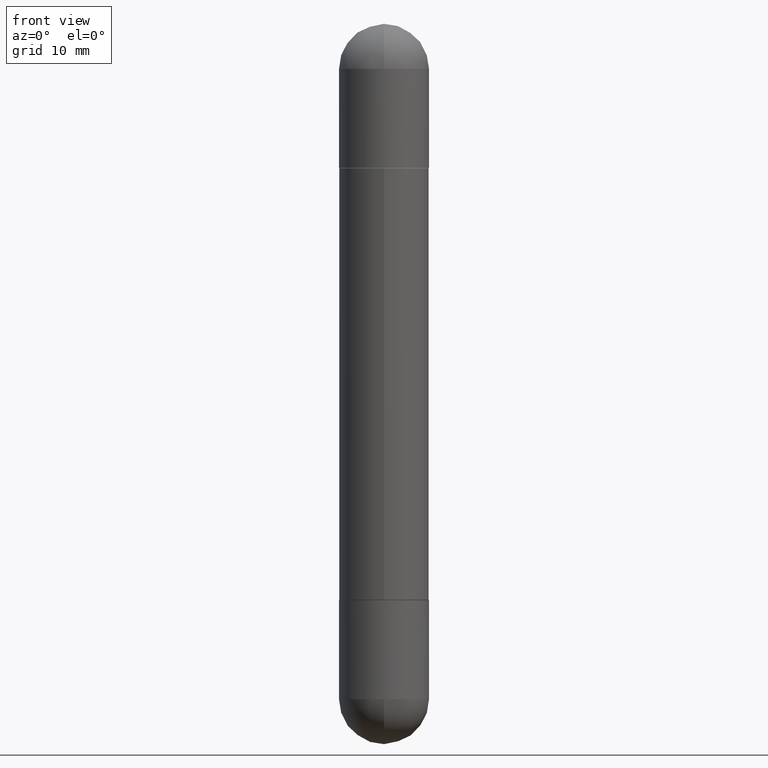
[diagram: clean part render]
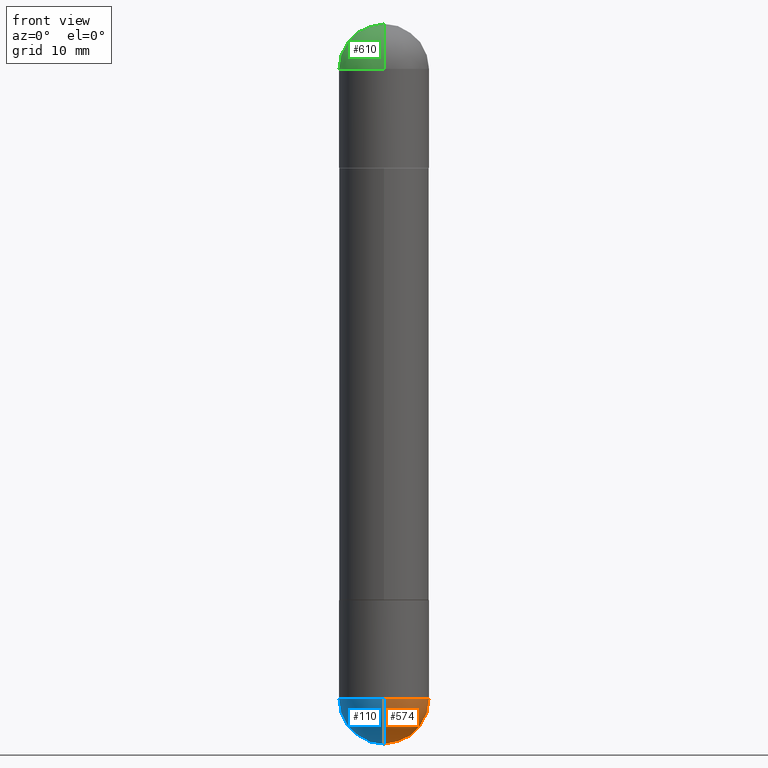
[diagram: same view with three faces highlighted in distinct colors, each labeled with its STEP entity id]
A machine part, front view with three faces highlighted in distinct colors.
Their STEP definitions:

[orange] entity #574 — the highlighted spherical surface has radius 3.9688 mm.
#8 = CIRCLE ( 'NONE', #326, 0.1562500000000000000 ) ;
#57 = ORIENTED_EDGE ( 'NONE', *, *, #159, .F. ) ;
#82 = DIRECTION ( 'NONE',  ( 1.000000000000000000, -6.982962677686265922E-15, 4.883557194083112340E-29 ) ) ;
#108 = DIRECTION ( 'NONE',  ( -1.000000000000000000, 6.982962677686265922E-15, -4.883557194083112340E-29 ) ) ;
#113 = AXIS2_PLACEMENT_3D ( 'NONE', #125, #459, #770 ) ;
#125 = CARTESIAN_POINT ( 'NONE',  ( 5.400447736582527652E-29, -8.657341756053672891E-15, -2.343750000000000000 ) ) ;
#148 = DIRECTION ( 'NONE',  ( 1.000000000000000000, -6.982962677686262766E-15, 0.000000000000000000 ) ) ;
#159 = EDGE_CURVE ( 'NONE', #549, #381, #8, .T. ) ;
#236 = AXIS2_PLACEMENT_3D ( 'NONE', #304, #108, #795 ) ;
#242 = FACE_OUTER_BOUND ( 'NONE', #442, .T. ) ;
#289 = VERTEX_POINT ( 'NONE', #362 ) ;
#304 = CARTESIAN_POINT ( 'NONE',  ( 5.400447736582527652E-29, -8.657341756053672891E-15, -2.343750000000000000 ) ) ;
#326 = AXIS2_PLACEMENT_3D ( 'NONE', #335, #720, #148 ) ;
#335 = CARTESIAN_POINT ( 'NONE',  ( 5.731567514496413899E-29, -8.183159387913622595E-15, -2.343750000000000000 ) ) ;
#336 = CARTESIAN_POINT ( 'NONE',  ( 1.091087918388535577E-15, 0.1562499999999916733, -2.343750000000000444 ) ) ;
#362 = CARTESIAN_POINT ( 'NONE',  ( -1.110223024625101517E-15, -0.1562500000000085487, -2.343749999999999556 ) ) ;
#376 = EDGE_CURVE ( 'NONE', #682, #381, #800, .T. ) ;
#381 = VERTEX_POINT ( 'NONE', #336 ) ;
#440 = CIRCLE ( 'NONE', #505, 0.1562500000000000000 ) ;
#442 = EDGE_LOOP ( 'NONE', ( #735, #761, #57, #808 ) ) ;
#459 = DIRECTION ( 'NONE',  ( -1.000000000000000000, 7.105427357601001070E-15, -4.926315508542082329E-29 ) ) ;
#495 = DIRECTION ( 'NONE',  ( 1.000000000000000000, -6.982962677686262766E-15, 0.000000000000000000 ) ) ;
#499 = SPHERICAL_SURFACE ( 'NONE', #236, 0.1562500000000002498 ) ;
#505 = AXIS2_PLACEMENT_3D ( 'NONE', #802, #677, #495 ) ;
#513 = CARTESIAN_POINT ( 'NONE',  ( 5.789233224183170584E-29, -9.193318162129576161E-15, -2.500000000000000000 ) ) ;
#549 = VERTEX_POINT ( 'NONE', #551 ) ;
#551 = CARTESIAN_POINT ( 'NONE',  ( 0.1562500000000000000, -8.674148951188436448E-15, -2.343750000000000000 ) ) ;
#564 = EDGE_CURVE ( 'NONE', #289, #549, #440, .T. ) ;
#574 = ADVANCED_FACE ( 'NONE', ( #242 ), #499, .T. ) ;
#639 = CIRCLE ( 'NONE', #113, 0.1562500000000002498 ) ;
#661 = AXIS2_PLACEMENT_3D ( 'NONE', #665, #82, #789 ) ;
#665 = CARTESIAN_POINT ( 'NONE',  ( 5.400447736582527652E-29, -8.657341756053672891E-15, -2.343750000000000000 ) ) ;
#677 = DIRECTION ( 'NONE',  ( -2.445468806185136597E-29, 3.491481338843145583E-15, 1.000000000000000000 ) ) ;
#682 = VERTEX_POINT ( 'NONE', #513 ) ;
#720 = DIRECTION ( 'NONE',  ( -2.445468806185136597E-29, 3.491481338843145583E-15, 1.000000000000000000 ) ) ;
#735 = ORIENTED_EDGE ( 'NONE', *, *, #763, .F. ) ;
#761 = ORIENTED_EDGE ( 'NONE', *, *, #376, .T. ) ;
#763 = EDGE_CURVE ( 'NONE', #682, #289, #639, .T. ) ;
#770 = DIRECTION ( 'NONE',  ( -7.105427357601000281E-15, -1.000000000000000000, 0.000000000000000000 ) ) ;
#789 = DIRECTION ( 'NONE',  ( 6.982962677686265922E-15, 1.000000000000000000, 0.000000000000000000 ) ) ;
#795 = DIRECTION ( 'NONE',  ( 6.982962677686265922E-15, 1.000000000000000000, -3.496765431890251398E-15 ) ) ;
#800 = CIRCLE ( 'NONE', #661, 0.1562500000000002498 ) ;
#802 = CARTESIAN_POINT ( 'NONE',  ( 5.731567514496413899E-29, -8.183159387913622595E-15, -2.343750000000000000 ) ) ;
#808 = ORIENTED_EDGE ( 'NONE', *, *, #564, .F. ) ;

[blue] entity #110 — the highlighted spherical surface has radius 3.9688 mm.
#81 = DIRECTION ( 'NONE',  ( 1.000000000000000000, -6.982962677686262766E-15, 0.000000000000000000 ) ) ;
#82 = DIRECTION ( 'NONE',  ( 1.000000000000000000, -6.982962677686265922E-15, 4.883557194083112340E-29 ) ) ;
#110 = ADVANCED_FACE ( 'NONE', ( #461 ), #523, .T. ) ;
#113 = AXIS2_PLACEMENT_3D ( 'NONE', #125, #459, #770 ) ;
#125 = CARTESIAN_POINT ( 'NONE',  ( 5.400447736582527652E-29, -8.657341756053672891E-15, -2.343750000000000000 ) ) ;
#158 = DIRECTION ( 'NONE',  ( 6.982962677686265922E-15, 1.000000000000000000, -3.496765431890251398E-15 ) ) ;
#171 = ORIENTED_EDGE ( 'NONE', *, *, #376, .F. ) ;
#187 = EDGE_CURVE ( 'NONE', #453, #289, #314, .T. ) ;
#218 = CARTESIAN_POINT ( 'NONE',  ( 5.731567514496413899E-29, -8.183159387913622595E-15, -2.343750000000000000 ) ) ;
#239 = EDGE_CURVE ( 'NONE', #381, #453, #724, .T. ) ;
#257 = AXIS2_PLACEMENT_3D ( 'NONE', #664, #352, #81 ) ;
#262 = EDGE_LOOP ( 'NONE', ( #171, #316, #566, #490 ) ) ;
#289 = VERTEX_POINT ( 'NONE', #362 ) ;
#314 = CIRCLE ( 'NONE', #257, 0.1562500000000000000 ) ;
#316 = ORIENTED_EDGE ( 'NONE', *, *, #763, .T. ) ;
#336 = CARTESIAN_POINT ( 'NONE',  ( 1.091087918388535577E-15, 0.1562499999999916733, -2.343750000000000444 ) ) ;
#352 = DIRECTION ( 'NONE',  ( -2.445468806185136597E-29, 3.491481338843145583E-15, 1.000000000000000000 ) ) ;
#356 = DIRECTION ( 'NONE',  ( 1.000000000000000000, -6.982962677686262766E-15, 0.000000000000000000 ) ) ;
#362 = CARTESIAN_POINT ( 'NONE',  ( -1.110223024625101517E-15, -0.1562500000000085487, -2.343749999999999556 ) ) ;
#376 = EDGE_CURVE ( 'NONE', #682, #381, #800, .T. ) ;
#381 = VERTEX_POINT ( 'NONE', #336 ) ;
#400 = CARTESIAN_POINT ( 'NONE',  ( 5.400447736582527652E-29, -8.657341756053672891E-15, -2.343750000000000000 ) ) ;
#453 = VERTEX_POINT ( 'NONE', #728 ) ;
#459 = DIRECTION ( 'NONE',  ( -1.000000000000000000, 7.105427357601001070E-15, -4.926315508542082329E-29 ) ) ;
#461 = FACE_OUTER_BOUND ( 'NONE', #262, .T. ) ;
#481 = DIRECTION ( 'NONE',  ( -1.000000000000000000, 6.982962677686265922E-15, -4.883557194083112340E-29 ) ) ;
#490 = ORIENTED_EDGE ( 'NONE', *, *, #239, .F. ) ;
#513 = CARTESIAN_POINT ( 'NONE',  ( 5.789233224183170584E-29, -9.193318162129576161E-15, -2.500000000000000000 ) ) ;
#523 = SPHERICAL_SURFACE ( 'NONE', #637, 0.1562500000000002498 ) ;
#566 = ORIENTED_EDGE ( 'NONE', *, *, #187, .F. ) ;
#572 = AXIS2_PLACEMENT_3D ( 'NONE', #218, #727, #356 ) ;
#637 = AXIS2_PLACEMENT_3D ( 'NONE', #400, #481, #158 ) ;
#639 = CIRCLE ( 'NONE', #113, 0.1562500000000002498 ) ;
#661 = AXIS2_PLACEMENT_3D ( 'NONE', #665, #82, #789 ) ;
#664 = CARTESIAN_POINT ( 'NONE',  ( 5.731567514496413899E-29, -8.183159387913622595E-15, -2.343750000000000000 ) ) ;
#665 = CARTESIAN_POINT ( 'NONE',  ( 5.400447736582527652E-29, -8.657341756053672891E-15, -2.343750000000000000 ) ) ;
#682 = VERTEX_POINT ( 'NONE', #513 ) ;
#724 = CIRCLE ( 'NONE', #572, 0.1562500000000000000 ) ;
#727 = DIRECTION ( 'NONE',  ( -2.445468806185136597E-29, 3.491481338843145583E-15, 1.000000000000000000 ) ) ;
#728 = CARTESIAN_POINT ( 'NONE',  ( -0.1562500000000000000, -6.472838008174800734E-15, -2.343750000000000000 ) ) ;
#763 = EDGE_CURVE ( 'NONE', #682, #289, #639, .T. ) ;
#770 = DIRECTION ( 'NONE',  ( -7.105427357601000281E-15, -1.000000000000000000, 0.000000000000000000 ) ) ;
#789 = DIRECTION ( 'NONE',  ( 6.982962677686265922E-15, 1.000000000000000000, 0.000000000000000000 ) ) ;
#800 = CIRCLE ( 'NONE', #661, 0.1562500000000002498 ) ;

[green] entity #610 — the highlighted spherical surface has radius 3.9688 mm.
#26 = DIRECTION ( 'NONE',  ( -6.982962677686265922E-15, -1.000000000000000000, 0.000000000000000000 ) ) ;
#50 = ORIENTED_EDGE ( 'NONE', *, *, #784, .T. ) ;
#77 = AXIS2_PLACEMENT_3D ( 'NONE', #208, #298, #748 ) ;
#101 = CARTESIAN_POINT ( 'NONE',  ( 1.091087918388535577E-15, 0.1562499999999916733, -0.1562500000000000000 ) ) ;
#139 = DIRECTION ( 'NONE',  ( -1.000000000000000000, 6.982962677686265922E-15, 4.883557194083112340E-29 ) ) ;
#157 = CARTESIAN_POINT ( 'NONE',  ( 5.400447736582527652E-29, -8.657341756053672891E-15, -0.1562500000000005551 ) ) ;
#185 = DIRECTION ( 'NONE',  ( 6.982962677686265922E-15, 1.000000000000000000, 3.496765431890251398E-15 ) ) ;
#186 = ORIENTED_EDGE ( 'NONE', *, *, #386, .T. ) ;
#201 = CARTESIAN_POINT ( 'NONE',  ( 5.789233224183170584E-29, -9.193318162129576161E-15, -3.073328992872296367E-16 ) ) ;
#208 = CARTESIAN_POINT ( 'NONE',  ( 5.731567514496413899E-29, -8.183159387913622595E-15, -0.1562500000000005551 ) ) ;
#215 = DIRECTION ( 'NONE',  ( 1.000000000000000000, -6.860497997771530774E-15, -4.840798879624142912E-29 ) ) ;
#222 = CIRCLE ( 'NONE', #77, 0.1562500000000000000 ) ;
#240 = SPHERICAL_SURFACE ( 'NONE', #650, 0.1562500000000002498 ) ;
#246 = CARTESIAN_POINT ( 'NONE',  ( 5.400447736582527652E-29, -8.657341756053672891E-15, -0.1562500000000005551 ) ) ;
#298 = DIRECTION ( 'NONE',  ( 2.445468806185136597E-29, -3.491481338843145583E-15, 1.000000000000000000 ) ) ;
#301 = AXIS2_PLACEMENT_3D ( 'NONE', #157, #139, #26 ) ;
#310 = VERTEX_POINT ( 'NONE', #101 ) ;
#319 = VERTEX_POINT ( 'NONE', #556 ) ;
#386 = EDGE_CURVE ( 'NONE', #749, #310, #462, .T. ) ;
#395 = CIRCLE ( 'NONE', #477, 0.1562500000000002498 ) ;
#397 = EDGE_CURVE ( 'NONE', #749, #319, #395, .T. ) ;
#407 = DIRECTION ( 'NONE',  ( 6.860497997771530774E-15, 1.000000000000000000, 0.000000000000000000 ) ) ;
#433 = VERTEX_POINT ( 'NONE', #606 ) ;
#462 = CIRCLE ( 'NONE', #301, 0.1562500000000002498 ) ;
#477 = AXIS2_PLACEMENT_3D ( 'NONE', #783, #215, #407 ) ;
#485 = ORIENTED_EDGE ( 'NONE', *, *, #397, .F. ) ;
#489 = DIRECTION ( 'NONE',  ( 1.000000000000000000, -6.982962677686265922E-15, -4.883557194083112340E-29 ) ) ;
#519 = EDGE_CURVE ( 'NONE', #433, #319, #222, .T. ) ;
#546 = CIRCLE ( 'NONE', #651, 0.1562500000000000000 ) ;
#556 = CARTESIAN_POINT ( 'NONE',  ( -1.071952812151746981E-15, -0.1562500000000085487, -0.1562500000000011102 ) ) ;
#560 = FACE_OUTER_BOUND ( 'NONE', #674, .T. ) ;
#571 = CARTESIAN_POINT ( 'NONE',  ( 5.731567514496413899E-29, -8.183159387913622595E-15, -0.1562500000000005551 ) ) ;
#580 = DIRECTION ( 'NONE',  ( 1.000000000000000000, -6.982962677686262766E-15, 0.000000000000000000 ) ) ;
#606 = CARTESIAN_POINT ( 'NONE',  ( -0.1562500000000000000, -6.511108220648156257E-15, -0.1562500000000005551 ) ) ;
#610 = ADVANCED_FACE ( 'NONE', ( #560 ), #240, .T. ) ;
#650 = AXIS2_PLACEMENT_3D ( 'NONE', #246, #489, #185 ) ;
#651 = AXIS2_PLACEMENT_3D ( 'NONE', #571, #816, #580 ) ;
#674 = EDGE_LOOP ( 'NONE', ( #485, #186, #50, #769 ) ) ;
#748 = DIRECTION ( 'NONE',  ( 1.000000000000000000, -6.982962677686262766E-15, 0.000000000000000000 ) ) ;
#749 = VERTEX_POINT ( 'NONE', #201 ) ;
#769 = ORIENTED_EDGE ( 'NONE', *, *, #519, .T. ) ;
#783 = CARTESIAN_POINT ( 'NONE',  ( 5.400447736582527652E-29, -8.657341756053672891E-15, -0.1562500000000005551 ) ) ;
#784 = EDGE_CURVE ( 'NONE', #310, #433, #546, .T. ) ;
#816 = DIRECTION ( 'NONE',  ( 2.445468806185136597E-29, -3.491481338843145583E-15, 1.000000000000000000 ) ) ;